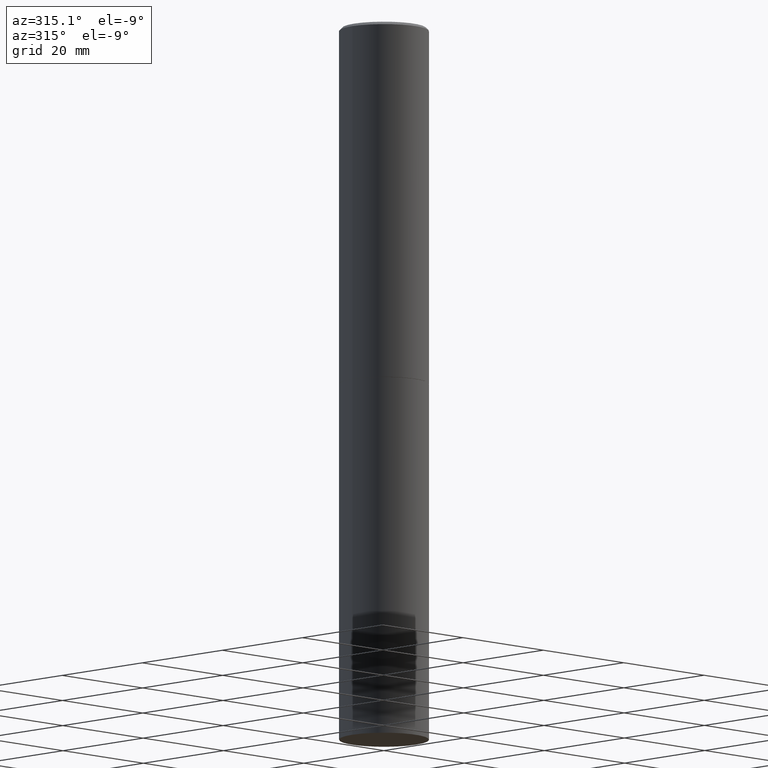
[diagram: clean part render]
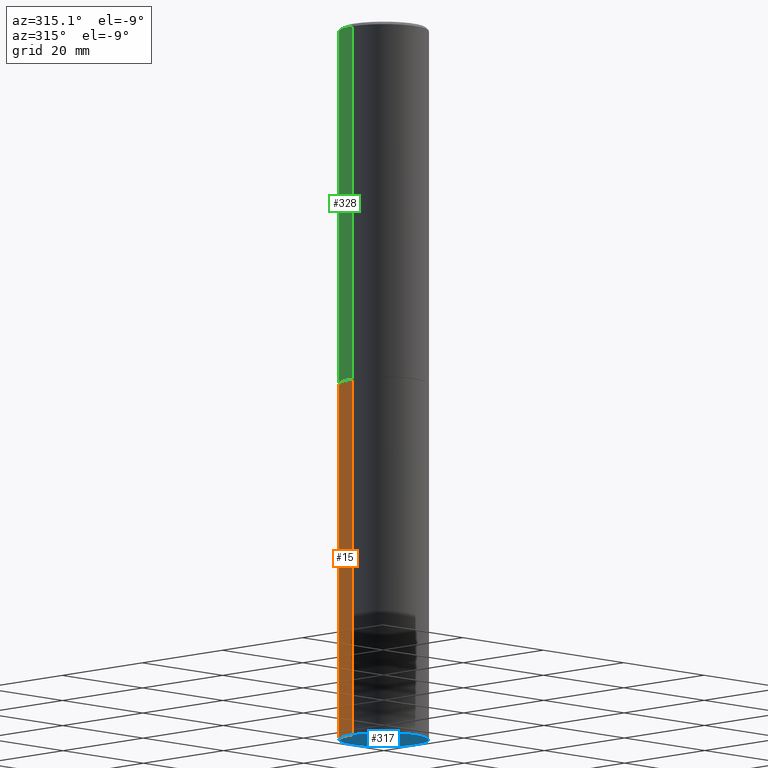
[diagram: same view with three faces highlighted in distinct colors, each labeled with its STEP entity id]
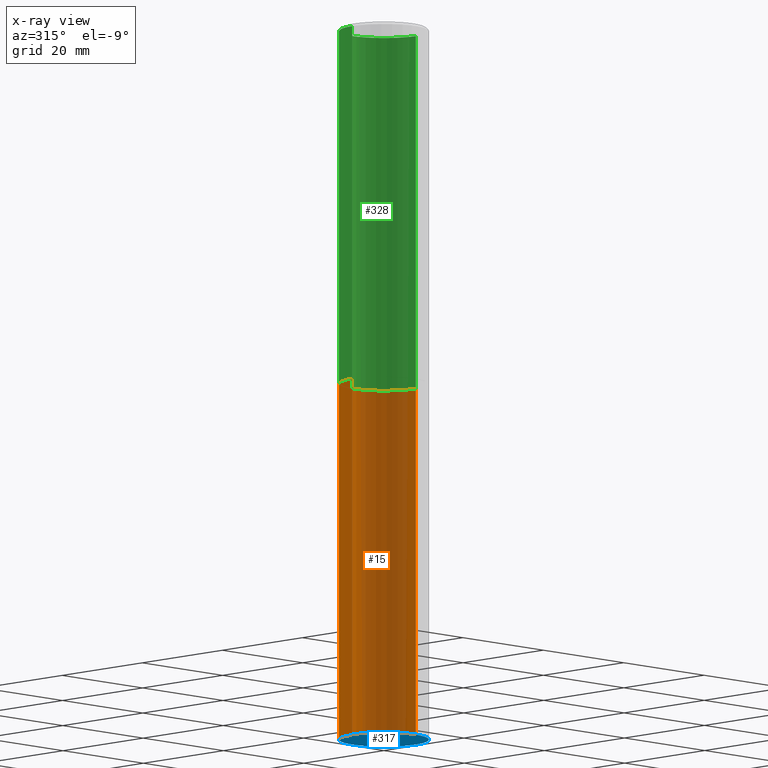
[diagram: x-ray of the same camera — body ghosted, the three highlighted faces saturated]
A machine part, auxiliary view with three faces highlighted in distinct colors.
The next image is the same camera in x-ray (body ghosted, the three faces saturated) — at least one of them is partly hidden behind the body in this view.
Their STEP definitions:

[orange] entity #15 — the highlighted cylindrical surface (partial cylindrical patch) has radius 7.9375 mm, axis along (-0, 0, 1).
#10 = FACE_OUTER_BOUND ( 'NONE', #261, .T. ) ;
#15 = ADVANCED_FACE ( 'NONE', ( #10 ), #288, .T. ) ;
#17 = AXIS2_PLACEMENT_3D ( 'NONE', #307, #142, #252 ) ;
#19 = DIRECTION ( 'NONE',  ( 1.000000000000000000, -6.982962677686266711E-15, 4.876176775795936353E-29 ) ) ;
#34 = EDGE_CURVE ( 'NONE', #295, #271, #305, .T. ) ;
#50 = CARTESIAN_POINT ( 'NONE',  ( -0.3125000000000000000, -1.087260897141148433E-14, -2.500000000000000000 ) ) ;
#53 = EDGE_CURVE ( 'NONE', #240, #271, #103, .T. ) ;
#65 = CIRCLE ( 'NONE', #17, 0.3125000000000000000 ) ;
#73 = DIRECTION ( 'NONE',  ( -2.445468806185136877E-29, 3.491481338843145188E-15, 1.000000000000000000 ) ) ;
#102 = LINE ( 'NONE', #327, #364 ) ;
#103 = CIRCLE ( 'NONE', #342, 0.3125000000000000000 ) ;
#106 = EDGE_CURVE ( 'NONE', #264, #240, #102, .T. ) ;
#107 = DIRECTION ( 'NONE',  ( -2.445468806185136597E-29, 3.491481338843145583E-15, 1.000000000000000000 ) ) ;
#124 = CARTESIAN_POINT ( 'NONE',  ( 0.000000000000000000, 0.000000000000000000, 0.000000000000000000 ) ) ;
#126 = ORIENTED_EDGE ( 'NONE', *, *, #53, .F. ) ;
#129 = AXIS2_PLACEMENT_3D ( 'NONE', #124, #330, #19 ) ;
#130 = ORIENTED_EDGE ( 'NONE', *, *, #349, .T. ) ;
#142 = DIRECTION ( 'NONE',  ( -2.445468806185136597E-29, 3.491481338843145583E-15, 1.000000000000000000 ) ) ;
#147 = CARTESIAN_POINT ( 'NONE',  ( 0.3125000000000000000, -1.963958253099268981E-14, -5.000000000000000000 ) ) ;
#160 = CARTESIAN_POINT ( 'NONE',  ( 6.113672015462842613E-29, -8.728703347107864943E-15, -2.500000000000000000 ) ) ;
#173 = CARTESIAN_POINT ( 'NONE',  ( -0.3125000000000000000, -1.087260897141148433E-14, -5.000000000000000000 ) ) ;
#188 = DIRECTION ( 'NONE',  ( -2.445468806185136877E-29, 3.491481338843145188E-15, 1.000000000000000000 ) ) ;
#240 = VERTEX_POINT ( 'NONE', #283 ) ;
#252 = DIRECTION ( 'NONE',  ( 1.000000000000000000, -6.982962677686269077E-15, 0.000000000000000000 ) ) ;
#261 = EDGE_LOOP ( 'NONE', ( #130, #316, #126, #346 ) ) ;
#264 = VERTEX_POINT ( 'NONE', #147 ) ;
#271 = VERTEX_POINT ( 'NONE', #50 ) ;
#278 = DIRECTION ( 'NONE',  ( 1.000000000000000000, -6.982962677686265133E-15, 0.000000000000000000 ) ) ;
#283 = CARTESIAN_POINT ( 'NONE',  ( 0.3125000000000000000, -1.091087918388482329E-14, -2.500000000000000000 ) ) ;
#288 = CYLINDRICAL_SURFACE ( 'NONE', #129, 0.3125000000000000000 ) ;
#295 = VERTEX_POINT ( 'NONE', #173 ) ;
#305 = LINE ( 'NONE', #329, #360 ) ;
#307 = CARTESIAN_POINT ( 'NONE',  ( 1.222734403092568523E-28, -1.745740669421572989E-14, -5.000000000000000000 ) ) ;
#316 = ORIENTED_EDGE ( 'NONE', *, *, #34, .T. ) ;
#327 = CARTESIAN_POINT ( 'NONE',  ( 0.3125000000000000000, -2.182175836776958347E-15, 1.523805242436230075E-29 ) ) ;
#329 = CARTESIAN_POINT ( 'NONE',  ( -0.3125000000000000000, 2.220446049250313081E-15, -1.537167215704658232E-29 ) ) ;
#330 = DIRECTION ( 'NONE',  ( -2.445468806185136597E-29, 3.491481338843145583E-15, 1.000000000000000000 ) ) ;
#342 = AXIS2_PLACEMENT_3D ( 'NONE', #160, #107, #278 ) ;
#346 = ORIENTED_EDGE ( 'NONE', *, *, #106, .F. ) ;
#349 = EDGE_CURVE ( 'NONE', #264, #295, #65, .T. ) ;
#360 = VECTOR ( 'NONE', #188, 39.37007874015748143 ) ;
#364 = VECTOR ( 'NONE', #73, 39.37007874015748143 ) ;

[blue] entity #317 — the highlighted planar face has unit normal (0, -0, -1).
#17 = AXIS2_PLACEMENT_3D ( 'NONE', #307, #142, #252 ) ;
#26 = FACE_OUTER_BOUND ( 'NONE', #68, .T. ) ;
#29 = AXIS2_PLACEMENT_3D ( 'NONE', #202, #172, #313 ) ;
#65 = CIRCLE ( 'NONE', #17, 0.3125000000000000000 ) ;
#68 = EDGE_LOOP ( 'NONE', ( #99, #209 ) ) ;
#89 = EDGE_CURVE ( 'NONE', #295, #264, #337, .T. ) ;
#99 = ORIENTED_EDGE ( 'NONE', *, *, #349, .F. ) ;
#113 = PLANE ( 'NONE',  #29 ) ;
#123 = AXIS2_PLACEMENT_3D ( 'NONE', #159, #353, #326 ) ;
#142 = DIRECTION ( 'NONE',  ( -2.445468806185136597E-29, 3.491481338843145583E-15, 1.000000000000000000 ) ) ;
#147 = CARTESIAN_POINT ( 'NONE',  ( 0.3125000000000000000, -1.963958253099268981E-14, -5.000000000000000000 ) ) ;
#159 = CARTESIAN_POINT ( 'NONE',  ( 1.222734403092568523E-28, -1.745740669421572989E-14, -5.000000000000000000 ) ) ;
#172 = DIRECTION ( 'NONE',  ( 2.438088387897960049E-29, -3.491481338843145188E-15, -1.000000000000000000 ) ) ;
#173 = CARTESIAN_POINT ( 'NONE',  ( -0.3125000000000000000, -1.087260897141148433E-14, -5.000000000000000000 ) ) ;
#202 = CARTESIAN_POINT ( 'NONE',  ( 2.182175836777080620E-15, 0.3124999999999825140, -5.000000000000000888 ) ) ;
#209 = ORIENTED_EDGE ( 'NONE', *, *, #89, .F. ) ;
#252 = DIRECTION ( 'NONE',  ( 1.000000000000000000, -6.982962677686269077E-15, 0.000000000000000000 ) ) ;
#264 = VERTEX_POINT ( 'NONE', #147 ) ;
#295 = VERTEX_POINT ( 'NONE', #173 ) ;
#307 = CARTESIAN_POINT ( 'NONE',  ( 1.222734403092568523E-28, -1.745740669421572989E-14, -5.000000000000000000 ) ) ;
#313 = DIRECTION ( 'NONE',  ( -1.000000000000000000, 6.982962677686265922E-15, -4.876176775795935793E-29 ) ) ;
#317 = ADVANCED_FACE ( 'NONE', ( #26 ), #113, .T. ) ;
#326 = DIRECTION ( 'NONE',  ( 1.000000000000000000, -6.982962677686269077E-15, 0.000000000000000000 ) ) ;
#337 = CIRCLE ( 'NONE', #123, 0.3125000000000000000 ) ;
#349 = EDGE_CURVE ( 'NONE', #264, #295, #65, .T. ) ;
#353 = DIRECTION ( 'NONE',  ( -2.445468806185136597E-29, 3.491481338843145583E-15, 1.000000000000000000 ) ) ;

[green] entity #328 — the highlighted cylindrical surface (partial cylindrical patch) has radius 7.9375 mm, axis along (-0, 0, 1).
#1 = CYLINDRICAL_SURFACE ( 'NONE', #303, 0.3124999999999998890 ) ;
#14 = CARTESIAN_POINT ( 'NONE',  ( 0.3125000000000000000, -1.090738770254598186E-14, -2.499000000000000998 ) ) ;
#18 = DIRECTION ( 'NONE',  ( -2.445468806185136597E-29, 3.491481338843145583E-15, 1.000000000000000000 ) ) ;
#21 = CARTESIAN_POINT ( 'NONE',  ( 4.890937612370284544E-31, -6.982962677686307633E-17, -0.02000000000000004552 ) ) ;
#37 = ORIENTED_EDGE ( 'NONE', *, *, #125, .T. ) ;
#43 = DIRECTION ( 'NONE',  ( 1.000000000000000000, -6.982962677686265133E-15, 0.000000000000000000 ) ) ;
#55 = CARTESIAN_POINT ( 'NONE',  ( -0.3125000000000000000, -2.177074697022629142E-15, -2.499000000000000998 ) ) ;
#69 = CARTESIAN_POINT ( 'NONE',  ( 6.111226546656659252E-29, -8.725211865769023513E-15, -2.499000000000000998 ) ) ;
#70 = EDGE_CURVE ( 'NONE', #128, #211, #275, .T. ) ;
#82 = DIRECTION ( 'NONE',  ( 1.000000000000000000, -6.982962677686266711E-15, 4.876176775795935232E-29 ) ) ;
#86 = AXIS2_PLACEMENT_3D ( 'NONE', #69, #18, #43 ) ;
#88 = DIRECTION ( 'NONE',  ( -2.445468806185136877E-29, 3.491481338843145188E-15, 1.000000000000000000 ) ) ;
#97 = ORIENTED_EDGE ( 'NONE', *, *, #70, .T. ) ;
#116 = CARTESIAN_POINT ( 'NONE',  ( -0.3124999999999997224, 2.112346210000093471E-15, -0.02000000000000004552 ) ) ;
#125 = EDGE_CURVE ( 'NONE', #211, #197, #136, .T. ) ;
#128 = VERTEX_POINT ( 'NONE', #14 ) ;
#136 = LINE ( 'NONE', #249, #151 ) ;
#139 = DIRECTION ( 'NONE',  ( 1.000000000000000000, -6.982962677686266711E-15, 0.000000000000000000 ) ) ;
#150 = VERTEX_POINT ( 'NONE', #355 ) ;
#151 = VECTOR ( 'NONE', #299, 39.37007874015748143 ) ;
#175 = LINE ( 'NONE', #225, #215 ) ;
#197 = VERTEX_POINT ( 'NONE', #116 ) ;
#208 = EDGE_CURVE ( 'NONE', #128, #150, #175, .T. ) ;
#211 = VERTEX_POINT ( 'NONE', #55 ) ;
#215 = VECTOR ( 'NONE', #88, 39.37007874015748143 ) ;
#222 = CIRCLE ( 'NONE', #276, 0.3124999999999997224 ) ;
#223 = CARTESIAN_POINT ( 'NONE',  ( 0.000000000000000000, 0.000000000000000000, 0.000000000000000000 ) ) ;
#225 = CARTESIAN_POINT ( 'NONE',  ( 0.3124999999999998890, -2.182175836776957558E-15, 1.523805242436229235E-29 ) ) ;
#249 = CARTESIAN_POINT ( 'NONE',  ( -0.3124999999999998890, 2.220446049250312292E-15, -1.537167215704657391E-29 ) ) ;
#259 = FACE_OUTER_BOUND ( 'NONE', #267, .T. ) ;
#267 = EDGE_LOOP ( 'NONE', ( #97, #37, #287, #321 ) ) ;
#275 = CIRCLE ( 'NONE', #86, 0.3125000000000000000 ) ;
#276 = AXIS2_PLACEMENT_3D ( 'NONE', #21, #339, #139 ) ;
#287 = ORIENTED_EDGE ( 'NONE', *, *, #365, .F. ) ;
#299 = DIRECTION ( 'NONE',  ( -2.445468806185136877E-29, 3.491481338843145188E-15, 1.000000000000000000 ) ) ;
#303 = AXIS2_PLACEMENT_3D ( 'NONE', #223, #333, #82 ) ;
#321 = ORIENTED_EDGE ( 'NONE', *, *, #208, .F. ) ;
#328 = ADVANCED_FACE ( 'NONE', ( #259 ), #1, .T. ) ;
#333 = DIRECTION ( 'NONE',  ( -2.445468806185136597E-29, 3.491481338843145583E-15, 1.000000000000000000 ) ) ;
#339 = DIRECTION ( 'NONE',  ( -2.445468806185136597E-29, 3.491481338843145583E-15, 1.000000000000000000 ) ) ;
#355 = CARTESIAN_POINT ( 'NONE',  ( 0.3124999999999997224, -2.213735251080464939E-15, -0.02000000000000004552 ) ) ;
#365 = EDGE_CURVE ( 'NONE', #150, #197, #222, .T. ) ;